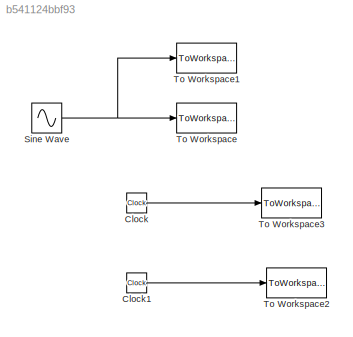
MODEL slx_b541124bbf93
KIND model
CONFIG AbsTol = auto
CONFIG EnableMultiTasking = off
CONFIG FixedStep = auto
CONFIG MaxStep = auto
CONFIG MinStep = auto
CONFIG RelTol = 1e-3
CONFIG SampleTimeConstraint = Unconstrained
CONFIG Solver = VariableStepAuto
CONFIG SolverName = VariableStepAuto
CONFIG StartTime = 0.0
CONFIG StopTime = 10.0
BLOCK [Clock] Clock
BLOCK [Clock] Clock1
BLOCK [Sin] Sine Wave
  Ports = [0, 1]
  SampleTime = 0
BLOCK [ToWorkspace] To Workspace
  FixptAsFi = on
  MaxDataPoints = inf
  Ports = [1]
  SampleTime = Te
  Save2DSignal = 3-D array (concatenate along third dimension)
  VariableName = Sin_Ech
BLOCK [ToWorkspace] To Workspace1
  FixptAsFi = on
  MaxDataPoints = inf
  Ports = [1]
  SampleTime = Te/100
  Save2DSignal = 3-D array (concatenate along third dimension)
  VariableName = Sin_Cont
BLOCK [ToWorkspace] To Workspace2
  FixptAsFi = on
  MaxDataPoints = inf
  Ports = [1]
  SampleTime = Te/100
  Save2DSignal = 3-D array (concatenate along third dimension)
  VariableName = Tps_Cont
BLOCK [ToWorkspace] To Workspace3
  FixptAsFi = on
  MaxDataPoints = inf
  Ports = [1]
  SampleTime = Te
  Save2DSignal = 3-D array (concatenate along third dimension)
  VariableName = Tps_Ech
LINE Clock1:1 -> To Workspace2:1
LINE Clock:1 -> To Workspace3:1
NET Sine Wave:1 -> To Workspace1:1, To Workspace:1
note: NET lines group one-source signal fan-out (src -> all destinations, sorted); 1:1 wires keep LINE
